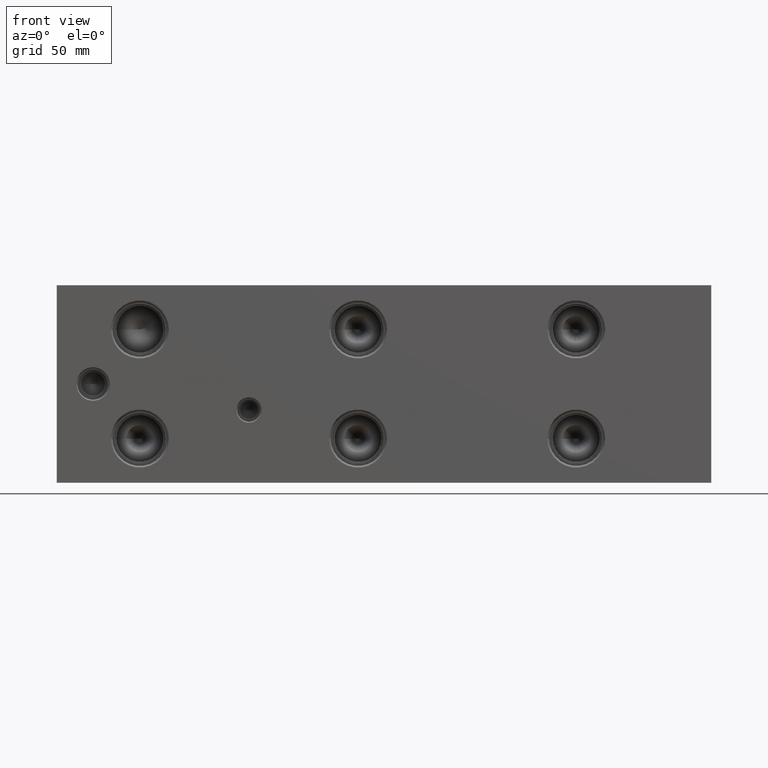
[diagram: clean part render]
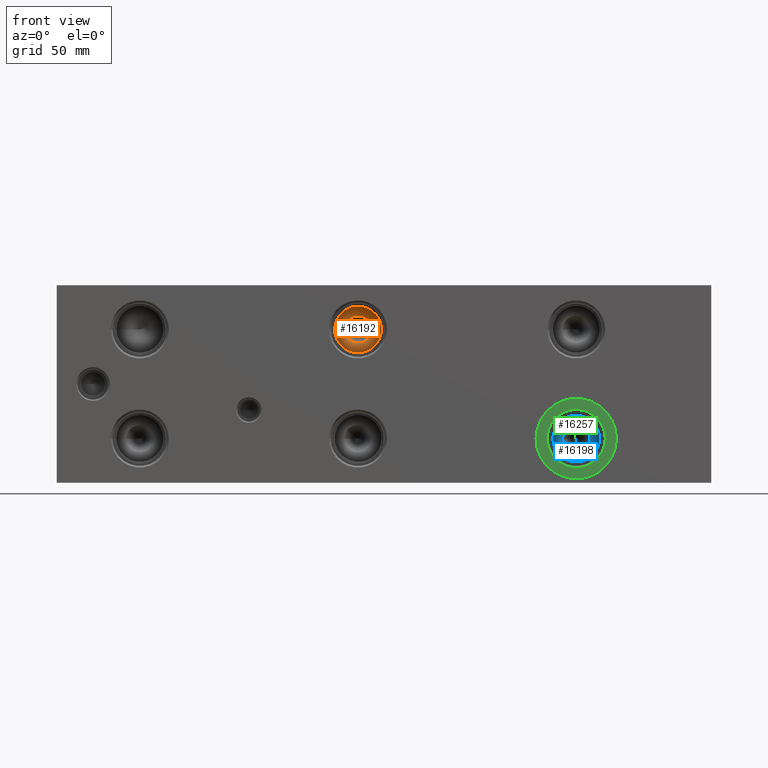
[diagram: same view with three faces highlighted in distinct colors, each labeled with its STEP entity id]
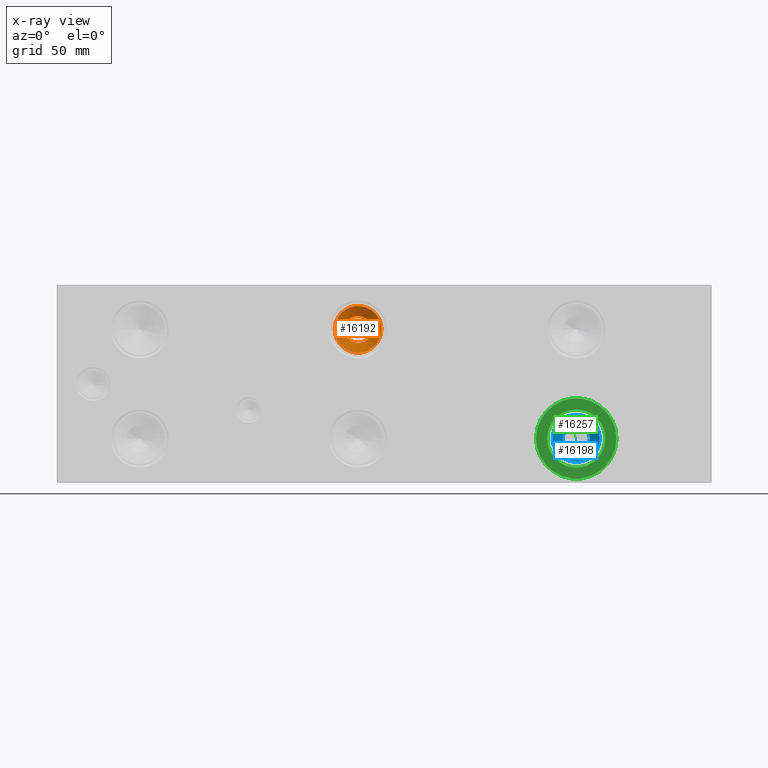
[diagram: x-ray of the same camera — body ghosted, the three highlighted faces saturated]
A machine part, front view with three faces highlighted in distinct colors.
The next image is the same camera in x-ray (body ghosted, the three faces saturated) — at least one of them is partly hidden behind the body in this view.
Their STEP definitions:

[orange] entity #16192 — the highlighted conical surface has half-angle 60 deg.
#28=CONICAL_SURFACE('',#16972,7.14375,1.0471975511966);
#567=CIRCLE('',#16973,14.2875);
#568=CIRCLE('',#16974,8.29239320143379);
#569=CIRCLE('',#16975,14.2875);
#2138=FACE_OUTER_BOUND('',#3079,.T.);
#3079=EDGE_LOOP('',(#13339,#13340,#13341,#13342,#13343));
#4584=LINE('',#27405,#5961);
#5961=VECTOR('',#19817,7.14375);
#7310=VERTEX_POINT('',#27401);
#7311=VERTEX_POINT('',#27402);
#7312=VERTEX_POINT('',#27404);
#9438=EDGE_CURVE('',#7310,#7311,#567,.T.);
#9439=EDGE_CURVE('',#7311,#7312,#4584,.T.);
#9440=EDGE_CURVE('',#7312,#7312,#568,.T.);
#9441=EDGE_CURVE('',#7311,#7310,#569,.T.);
#13339=ORIENTED_EDGE('',*,*,#9438,.T.);
#13340=ORIENTED_EDGE('',*,*,#9439,.T.);
#13341=ORIENTED_EDGE('',*,*,#9440,.F.);
#13342=ORIENTED_EDGE('',*,*,#9439,.F.);
#13343=ORIENTED_EDGE('',*,*,#9441,.T.);
#16192=ADVANCED_FACE('',(#2138),#28,.F.);
#16972=AXIS2_PLACEMENT_3D('',#27400,#19813,#19814);
#16973=AXIS2_PLACEMENT_3D('',#27403,#19815,#19816);
#16974=AXIS2_PLACEMENT_3D('',#27406,#19818,#19819);
#16975=AXIS2_PLACEMENT_3D('',#27407,#19820,#19821);
#19813=DIRECTION('center_axis',(0.,-1.,0.));
#19814=DIRECTION('ref_axis',(1.,0.,0.));
#19815=DIRECTION('center_axis',(0.,-1.,0.));
#19816=DIRECTION('ref_axis',(1.,0.,0.));
#19817=DIRECTION('',(0.866025403784438,0.5,1.06057523872491E-16));
#19818=DIRECTION('center_axis',(0.,-1.,0.));
#19819=DIRECTION('ref_axis',(1.,0.,0.));
#19820=DIRECTION('center_axis',(0.,-1.,0.));
#19821=DIRECTION('ref_axis',(1.,0.,0.));
#27400=CARTESIAN_POINT('Origin',(184.15,36.7715359855234,93.6752));
#27401=CARTESIAN_POINT('',(198.4375,32.64709,93.6752));
#27402=CARTESIAN_POINT('',(169.8625,32.64709,93.6752));
#27403=CARTESIAN_POINT('Origin',(184.15,32.64709,93.6752));
#27404=CARTESIAN_POINT('',(175.857606798566,36.1083665239728,93.6752));
#27405=CARTESIAN_POINT('',(177.00625,36.7715359855234,93.6752));
#27406=CARTESIAN_POINT('Origin',(184.15,36.1083665239728,93.6752));
#27407=CARTESIAN_POINT('Origin',(184.15,32.64709,93.6752));

[blue] entity #16198 — the highlighted conical surface has half-angle 60 deg.
#31=CONICAL_SURFACE('',#16990,7.14375,1.0471975511966);
#579=CIRCLE('',#16991,14.2875);
#580=CIRCLE('',#16992,8.29239320143379);
#581=CIRCLE('',#16993,14.2875);
#2144=FACE_OUTER_BOUND('',#3085,.T.);
#3085=EDGE_LOOP('',(#13369,#13370,#13371,#13372,#13373));
#4590=LINE('',#27441,#5967);
#5967=VECTOR('',#19859,7.14375);
#7322=VERTEX_POINT('',#27437);
#7323=VERTEX_POINT('',#27438);
#7324=VERTEX_POINT('',#27440);
#9456=EDGE_CURVE('',#7322,#7323,#579,.T.);
#9457=EDGE_CURVE('',#7323,#7324,#4590,.T.);
#9458=EDGE_CURVE('',#7324,#7324,#580,.T.);
#9459=EDGE_CURVE('',#7323,#7322,#581,.T.);
#13369=ORIENTED_EDGE('',*,*,#9456,.T.);
#13370=ORIENTED_EDGE('',*,*,#9457,.T.);
#13371=ORIENTED_EDGE('',*,*,#9458,.F.);
#13372=ORIENTED_EDGE('',*,*,#9457,.F.);
#13373=ORIENTED_EDGE('',*,*,#9459,.T.);
#16198=ADVANCED_FACE('',(#2144),#31,.F.);
#16990=AXIS2_PLACEMENT_3D('',#27436,#19855,#19856);
#16991=AXIS2_PLACEMENT_3D('',#27439,#19857,#19858);
#16992=AXIS2_PLACEMENT_3D('',#27442,#19860,#19861);
#16993=AXIS2_PLACEMENT_3D('',#27443,#19862,#19863);
#19855=DIRECTION('center_axis',(0.,-1.,0.));
#19856=DIRECTION('ref_axis',(1.,0.,0.));
#19857=DIRECTION('center_axis',(0.,-1.,0.));
#19858=DIRECTION('ref_axis',(1.,0.,0.));
#19859=DIRECTION('',(0.866025403784438,0.5,1.06057523872491E-16));
#19860=DIRECTION('center_axis',(0.,-1.,0.));
#19861=DIRECTION('ref_axis',(1.,0.,0.));
#19862=DIRECTION('center_axis',(0.,-1.,0.));
#19863=DIRECTION('ref_axis',(1.,0.,0.));
#27436=CARTESIAN_POINT('Origin',(317.5,36.7715359855234,26.9748));
#27437=CARTESIAN_POINT('',(331.7875,32.64709,26.9748));
#27438=CARTESIAN_POINT('',(303.2125,32.64709,26.9748));
#27439=CARTESIAN_POINT('Origin',(317.5,32.64709,26.9748));
#27440=CARTESIAN_POINT('',(309.207606798566,36.1083665239728,26.9748));
#27441=CARTESIAN_POINT('',(310.35625,36.7715359855234,26.9748));
#27442=CARTESIAN_POINT('Origin',(317.5,36.1083665239728,26.9748));
#27443=CARTESIAN_POINT('Origin',(317.5,32.64709,26.9748));

[green] entity #16257 — the highlighted planar face has unit normal (0, -1, 0).
#655=CIRCLE('',#17126,24.5618);
#656=CIRCLE('',#17127,24.5618);
#657=CIRCLE('',#17128,17.7546);
#1460=FACE_BOUND('',#3154,.T.);
#2203=FACE_OUTER_BOUND('',#3153,.T.);
#3153=EDGE_LOOP('',(#13635,#13636));
#3154=EDGE_LOOP('',(#13637));
#7403=VERTEX_POINT('',#27703);
#7404=VERTEX_POINT('',#27704);
#7405=VERTEX_POINT('',#27707);
#9582=EDGE_CURVE('',#7403,#7404,#655,.T.);
#9583=EDGE_CURVE('',#7404,#7403,#656,.T.);
#9584=EDGE_CURVE('',#7405,#7405,#657,.T.);
#13635=ORIENTED_EDGE('',*,*,#9582,.T.);
#13636=ORIENTED_EDGE('',*,*,#9583,.T.);
#13637=ORIENTED_EDGE('',*,*,#9584,.F.);
#15005=PLANE('',#17125);
#16257=ADVANCED_FACE('',(#2203,#1460),#15005,.T.);
#17125=AXIS2_PLACEMENT_3D('',#27702,#20175,#20176);
#17126=AXIS2_PLACEMENT_3D('',#27705,#20177,#20178);
#17127=AXIS2_PLACEMENT_3D('',#27706,#20179,#20180);
#17128=AXIS2_PLACEMENT_3D('',#27708,#20181,#20182);
#20175=DIRECTION('center_axis',(0.,-1.,0.));
#20176=DIRECTION('ref_axis',(1.,0.,0.));
#20177=DIRECTION('center_axis',(0.,-1.,0.));
#20178=DIRECTION('ref_axis',(1.,0.,0.));
#20179=DIRECTION('center_axis',(0.,-1.,0.));
#20180=DIRECTION('ref_axis',(1.,0.,0.));
#20181=DIRECTION('center_axis',(0.,-1.,0.));
#20182=DIRECTION('ref_axis',(1.,0.,0.));
#27702=CARTESIAN_POINT('Origin',(317.5,0.7874,26.9748));
#27703=CARTESIAN_POINT('',(342.0618,0.7874,26.9748));
#27704=CARTESIAN_POINT('',(292.9382,0.7874,26.9748));
#27705=CARTESIAN_POINT('Origin',(317.5,0.7874,26.9748));
#27706=CARTESIAN_POINT('Origin',(317.5,0.7874,26.9748));
#27707=CARTESIAN_POINT('',(299.7454,0.7874,26.9748));
#27708=CARTESIAN_POINT('Origin',(317.5,0.7874,26.9748));